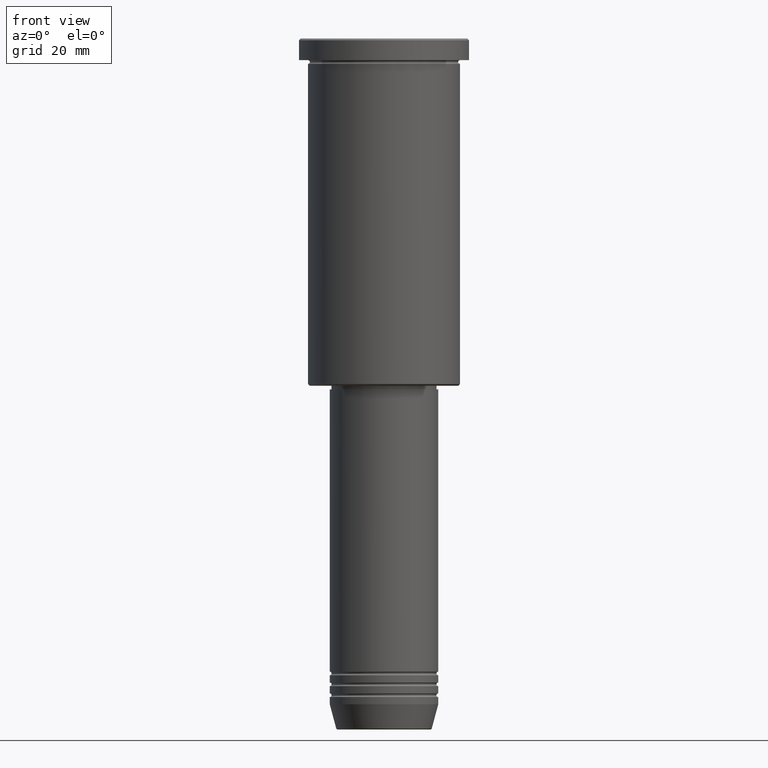
[diagram: clean part render]
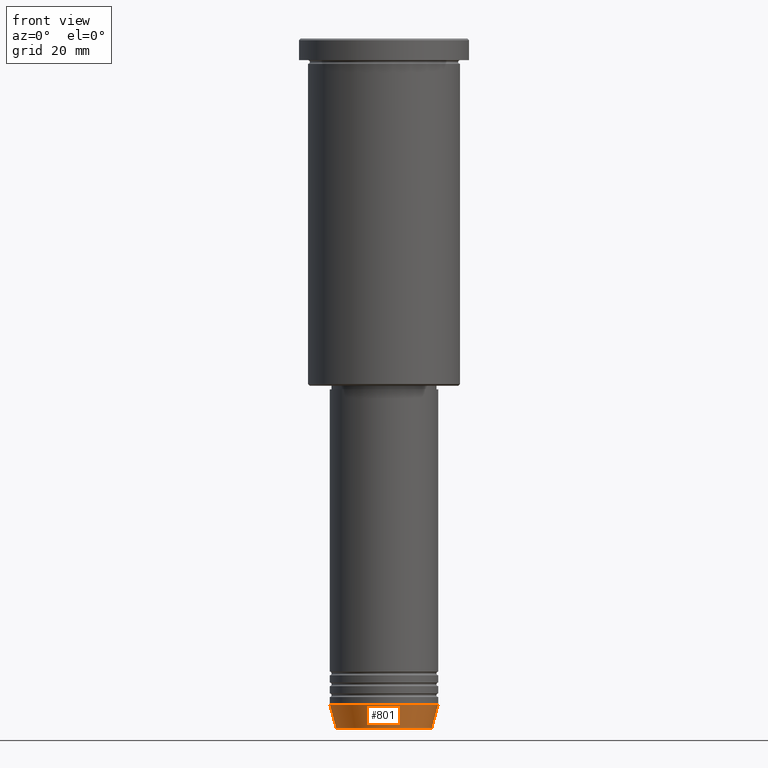
[diagram: same view with one face highlighted and labeled with its STEP entity id]
A machine part, front view. The second image highlights one B-rep face of the part: STEP entity #801.
In plain terms, the highlighted conical surface has half-angle 15 deg.
Its self-contained STEP definition (entity closure, byte-faithful):
#13 = CARTESIAN_POINT ( 'NONE',  ( 0.000000000000000000, 0.000000000000000000, -184.0000000000000284 ) ) ;
#45 = CARTESIAN_POINT ( 'NONE',  ( -13.22365507213719305, 1.728200442216588583E-15, -190.6294095225512422 ) ) ;
#56 = AXIS2_PLACEMENT_3D ( 'NONE', #13, #586, #836 ) ;
#59 = CARTESIAN_POINT ( 'NONE',  ( -15.00000000000000000, 1.836970198721029589E-15, -184.0000000000000284 ) ) ;
#85 = VERTEX_POINT ( 'NONE', #799 ) ;
#110 = LINE ( 'NONE', #659, #261 ) ;
#134 = CARTESIAN_POINT ( 'NONE',  ( -15.00000000000000000, 1.836970198721029589E-15, -184.0000000000000284 ) ) ;
#151 = VERTEX_POINT ( 'NONE', #59 ) ;
#193 = EDGE_CURVE ( 'NONE', #85, #806, #110, .T. ) ;
#261 = VECTOR ( 'NONE', #842, 1000.000000000000000 ) ;
#351 = AXIS2_PLACEMENT_3D ( 'NONE', #1118, #853, #397 ) ;
#382 = DIRECTION ( 'NONE',  ( -0.2588190451025213501, 3.169619151431772337E-17, 0.9659258262890680902 ) ) ;
#397 = DIRECTION ( 'NONE',  ( 1.000000000000000000, 0.000000000000000000, 0.000000000000000000 ) ) ;
#453 = CIRCLE ( 'NONE', #489, 13.22365507213719305 ) ;
#467 = FACE_OUTER_BOUND ( 'NONE', #1049, .T. ) ;
#473 = LINE ( 'NONE', #134, #1158 ) ;
#489 = AXIS2_PLACEMENT_3D ( 'NONE', #880, #1033, #688 ) ;
#569 = CIRCLE ( 'NONE', #351, 15.00000000000000000 ) ;
#586 = DIRECTION ( 'NONE',  ( -0.000000000000000000, -0.000000000000000000, 1.000000000000000000 ) ) ;
#659 = CARTESIAN_POINT ( 'NONE',  ( 15.00000000000000000, 0.000000000000000000, -184.0000000000000284 ) ) ;
#669 = CONICAL_SURFACE ( 'NONE', #56, 15.00000000000000000, 0.2617993877991500740 ) ;
#684 = ORIENTED_EDGE ( 'NONE', *, *, #804, .F. ) ;
#688 = DIRECTION ( 'NONE',  ( 1.000000000000000000, 0.000000000000000000, 0.000000000000000000 ) ) ;
#766 = CARTESIAN_POINT ( 'NONE',  ( 15.00000000000000000, 0.000000000000000000, -184.0000000000000284 ) ) ;
#799 = CARTESIAN_POINT ( 'NONE',  ( 13.22365507213719305, 0.000000000000000000, -190.6294095225512422 ) ) ;
#801 = ADVANCED_FACE ( 'NONE', ( #467 ), #669, .T. ) ;
#804 = EDGE_CURVE ( 'NONE', #151, #806, #569, .T. ) ;
#806 = VERTEX_POINT ( 'NONE', #766 ) ;
#836 = DIRECTION ( 'NONE',  ( 1.000000000000000000, 0.000000000000000000, 0.000000000000000000 ) ) ;
#842 = DIRECTION ( 'NONE',  ( 0.2588190451025213501, 0.000000000000000000, 0.9659258262890680902 ) ) ;
#850 = EDGE_CURVE ( 'NONE', #981, #151, #473, .T. ) ;
#852 = ORIENTED_EDGE ( 'NONE', *, *, #891, .T. ) ;
#853 = DIRECTION ( 'NONE',  ( -0.000000000000000000, -0.000000000000000000, 1.000000000000000000 ) ) ;
#880 = CARTESIAN_POINT ( 'NONE',  ( 0.000000000000000000, 0.000000000000000000, -190.6294095225512422 ) ) ;
#891 = EDGE_CURVE ( 'NONE', #981, #85, #453, .T. ) ;
#951 = ORIENTED_EDGE ( 'NONE', *, *, #850, .F. ) ;
#981 = VERTEX_POINT ( 'NONE', #45 ) ;
#1033 = DIRECTION ( 'NONE',  ( -0.000000000000000000, -0.000000000000000000, 1.000000000000000000 ) ) ;
#1049 = EDGE_LOOP ( 'NONE', ( #951, #852, #1166, #684 ) ) ;
#1118 = CARTESIAN_POINT ( 'NONE',  ( 0.000000000000000000, 0.000000000000000000, -184.0000000000000284 ) ) ;
#1158 = VECTOR ( 'NONE', #382, 1000.000000000000000 ) ;
#1166 = ORIENTED_EDGE ( 'NONE', *, *, #193, .T. ) ;